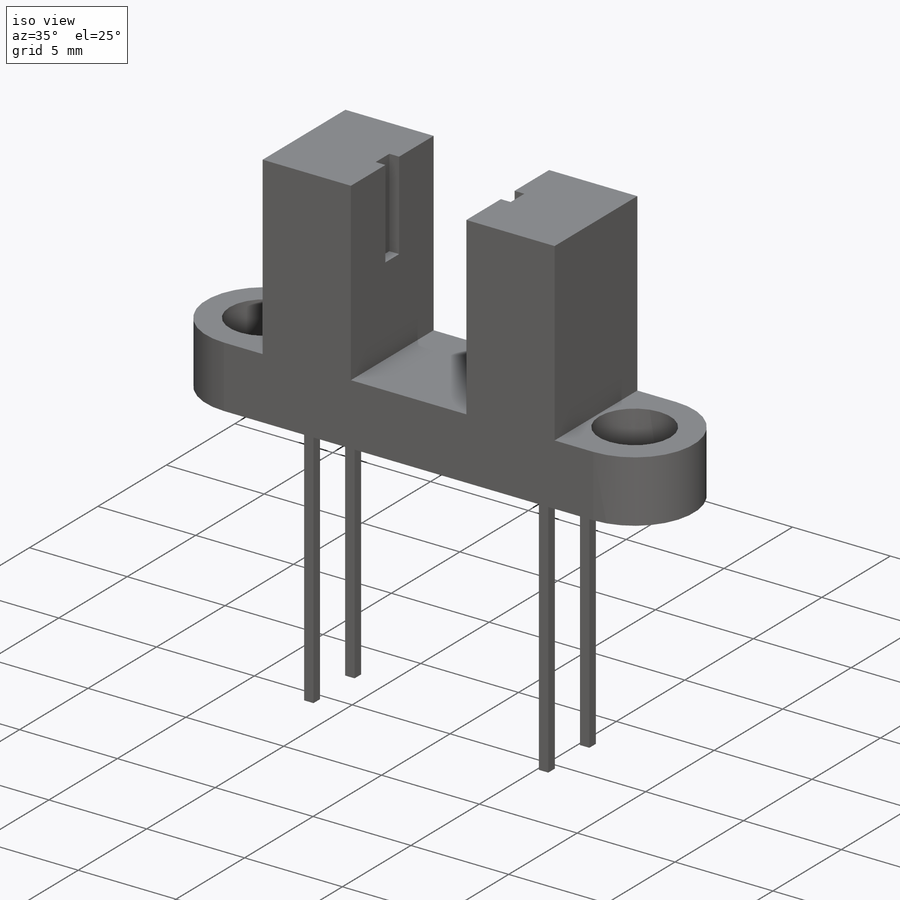
[diagram: iso view]
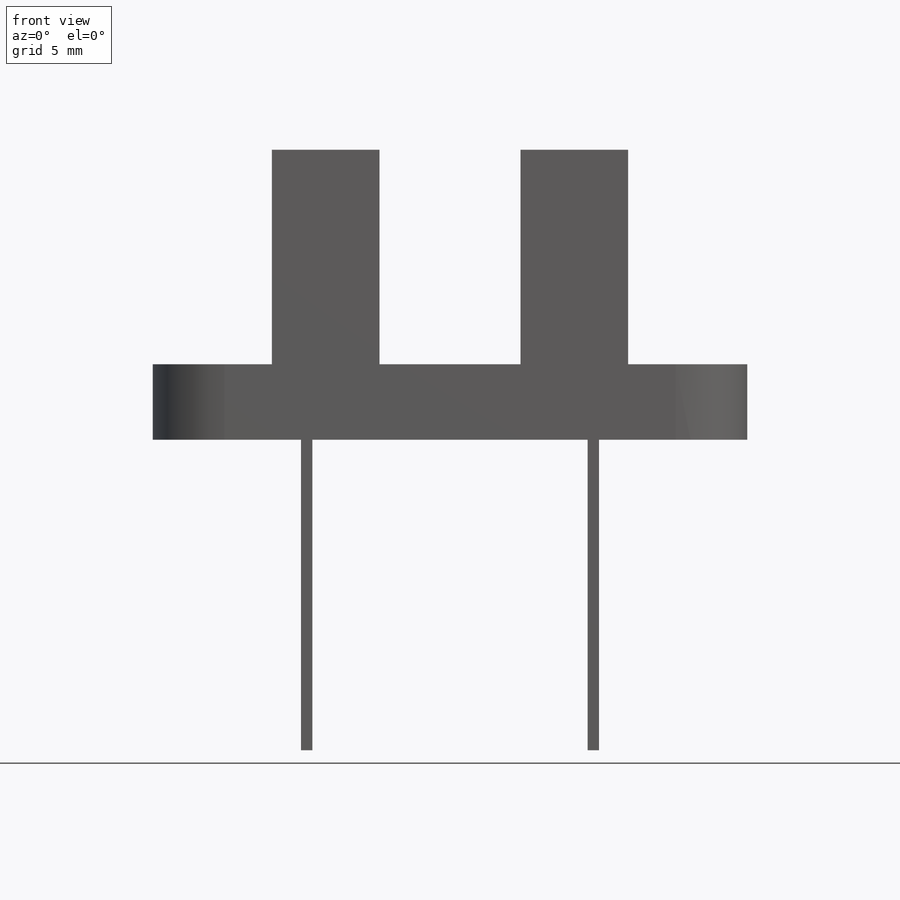
[diagram: front view]
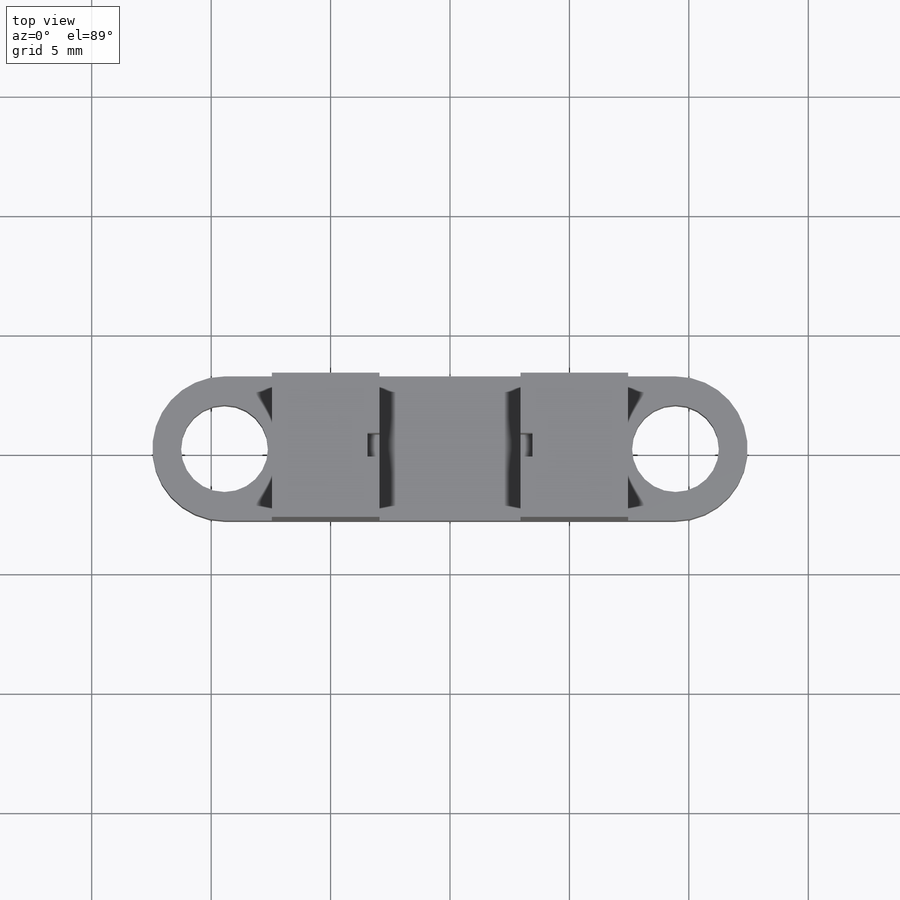
[diagram: top view]
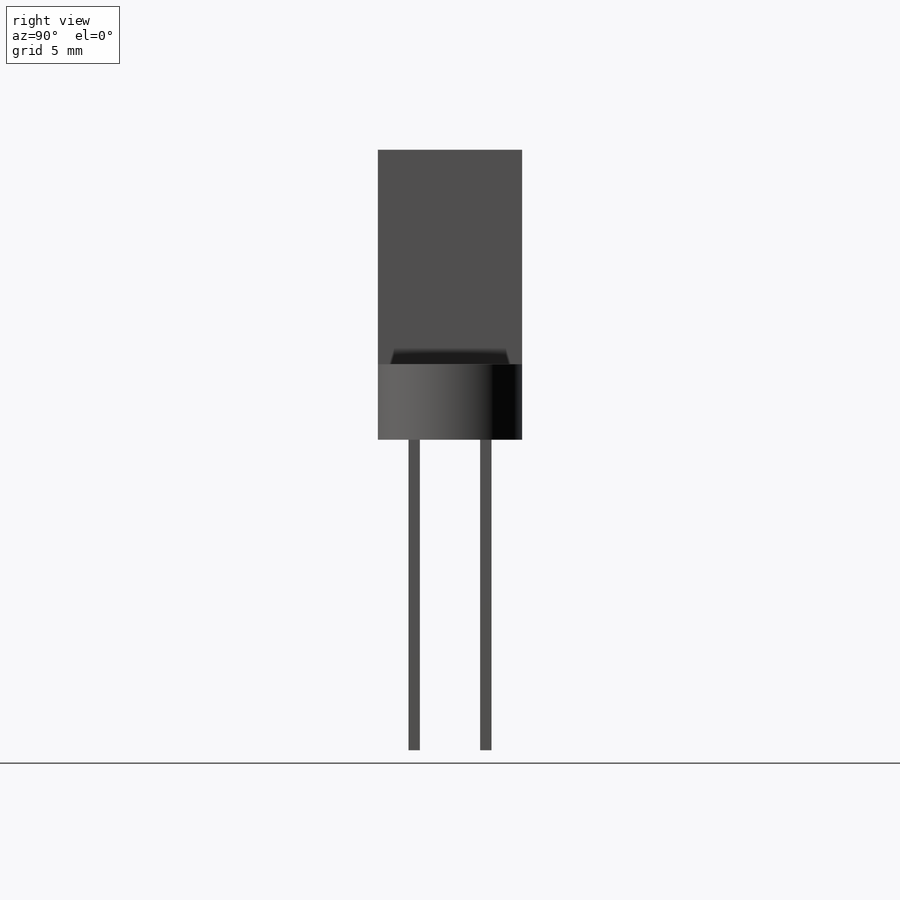
[diagram: right view]
SOLIDWORKS PART (.sldprt)
format: sldprt  version: not decoded by parser v0  size: 215,552 bytes
history: native  units: mm
features: sketch x4, plane x3, extrude x3, material x1, cut_extrude x1 (+10 scaffold rows collapsed)
feature tree (22):
  scaffold x10  (default folders/planes/origin — collapsed)
  material  "Material <sin especificar>"
  plane  "Alzado"
  plane  "Planta"
  plane  "Vista lateral"
  sketch  "Croquis1"  dims[c1.D2=3.02mm c1.D3=3.64mm c1.D4=3.64mm c1.D1=6.04mm c2.D2=18.88mm]
  extrude  "Saliente-Extruir1"  Depth=3.16mm
  sketch  "Croquis2"  dims[D1=14.92mm D2=7.46mm D3=5.9mm D4=2.95mm]
  extrude  "Saliente-Extruir2"  Depth=8.98mm
  sketch  "Croquis3"  dims[c1.D1=12.0mm c1.D2=3.0mm c1.D3=0.48mm c1.D4=0.48mm c1.D7=0.48mm c2.D7=90.0deg c3.D7=0.48mm c3.D5=2.0 c3.D6=2.0]
  extrude  "Saliente-Extruir3"  Depth=13mm
  sketch  "Croquis4"  dims[D1=0.5mm D2=1.0mm]
  cut_extrude  "Cortar-Extruir1"  Depth=4.5mm
decode coverage: 8 of 8 modeling features carry decoded parameters
note: suppression state not decoded; provenance and decode notes live in map.json
